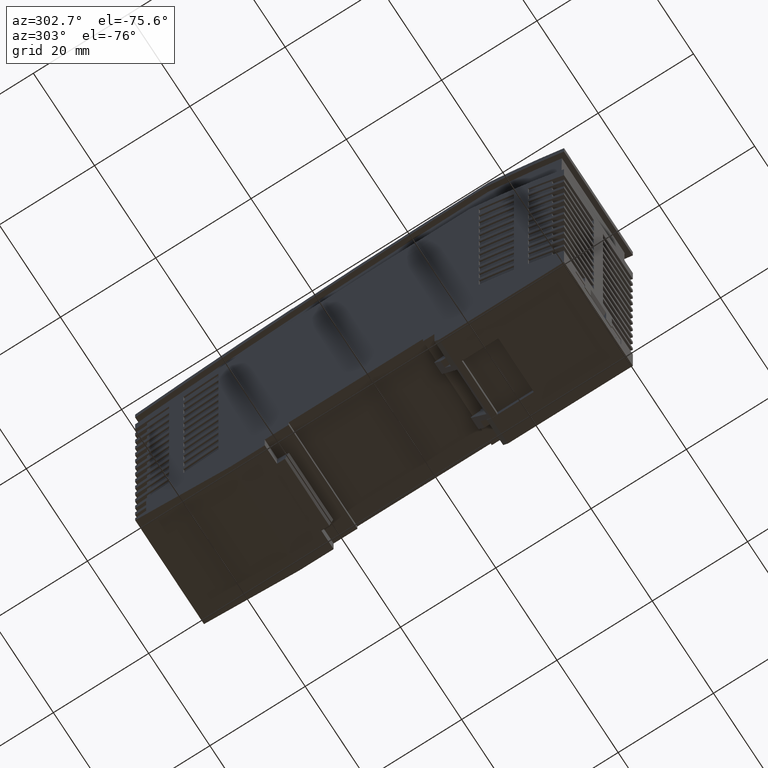
[diagram: clean part render]
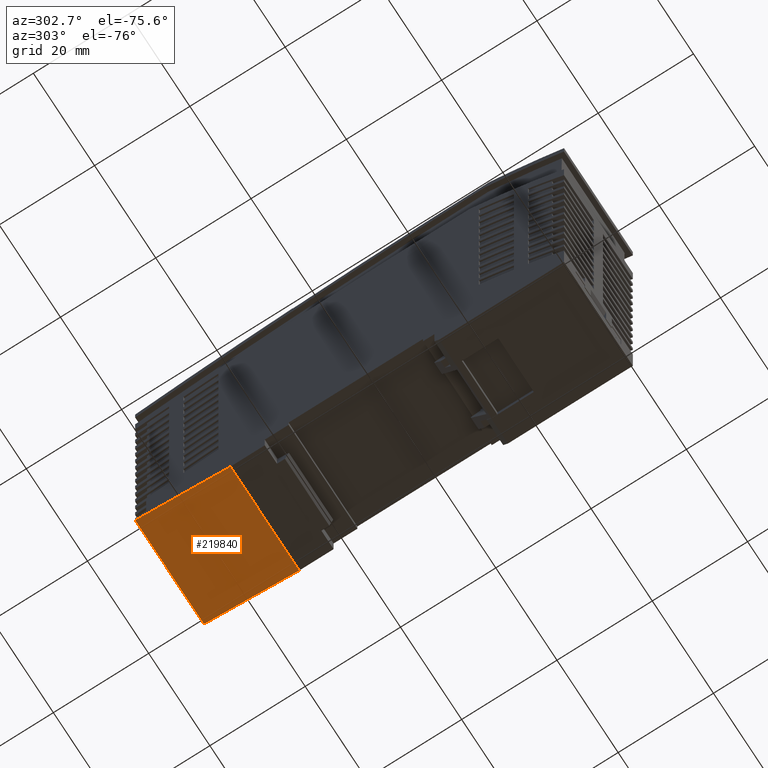
[diagram: same view with one face highlighted and labeled with its STEP entity id]
A machine part, auxiliary view. The second image highlights one B-rep face of the part: STEP entity #219840.
In plain terms, the highlighted planar face has unit normal (0, -0.1961, 0.9806).
Its self-contained STEP definition (entity closure, byte-faithful):
#18820=CARTESIAN_POINT('',(44.9984763926468,6.02907227620773,-21.5));
#18830=VERTEX_POINT('',#18820);
#18860=CARTESIAN_POINT('',(44.9984763926468,6.02907227620774,16.25));
#18870=DIRECTION('',(0.,0.,1.));
#18880=VECTOR('',#18870,1.);
#18890=LINE('',#18860,#18880);
#18900=CARTESIAN_POINT('',(44.9984763926468,6.02907227620774,1.));
#18910=VERTEX_POINT('',#18900);
#18920=EDGE_CURVE('',#18830,#18910,#18890,.T.);
#72650=CARTESIAN_POINT('',(0.,-2.97062300232254,1.));
#72660=DIRECTION('',(-0.980580675690916,-0.196116135138203,0.));
#72670=VECTOR('',#72660,1.);
#72680=LINE('',#72650,#72670);
#72690=CARTESIAN_POINT('',(24.998476392667,2.02907227621137,1.));
#72700=VERTEX_POINT('',#72690);
#72710=EDGE_CURVE('',#18910,#72700,#72680,.T.);
#190030=CARTESIAN_POINT('',(24.998476392667,2.02907227621137,-21.5));
#190040=VERTEX_POINT('',#190030);
#190070=CARTESIAN_POINT('',(0.,-2.97062300232254,-21.5));
#190080=DIRECTION('',(0.980580675690916,0.196116135138203,0.));
#190090=VECTOR('',#190080,1.);
#190100=LINE('',#190070,#190090);
#190110=EDGE_CURVE('',#190040,#18830,#190100,.T.);
#207400=CARTESIAN_POINT('',(24.998476392667,2.02907227621137,16.25));
#207410=DIRECTION('',(0.,0.,-1.));
#207420=VECTOR('',#207410,1.);
#207430=LINE('',#207400,#207420);
#207440=EDGE_CURVE('',#72700,#190040,#207430,.T.);
#219730=CARTESIAN_POINT('',(24.998476392667,2.02907227621137,-37.75));
#219740=DIRECTION('',(-0.196116135138203,0.980580675690916,0.));
#219750=DIRECTION('',(-0.980580675690916,-0.196116135138203,0.));
#219760=AXIS2_PLACEMENT_3D('',#219730,#219740,#219750);
#219770=PLANE('',#219760);
#219780=ORIENTED_EDGE('',*,*,#18920,.T.);
#219790=ORIENTED_EDGE('',*,*,#190110,.T.);
#219800=ORIENTED_EDGE('',*,*,#207440,.T.);
#219810=ORIENTED_EDGE('',*,*,#72710,.T.);
#219820=EDGE_LOOP('',(#219810,#219800,#219790,#219780));
#219830=FACE_OUTER_BOUND('',#219820,.T.);
#219840=ADVANCED_FACE('',(#219830),#219770,.F.);